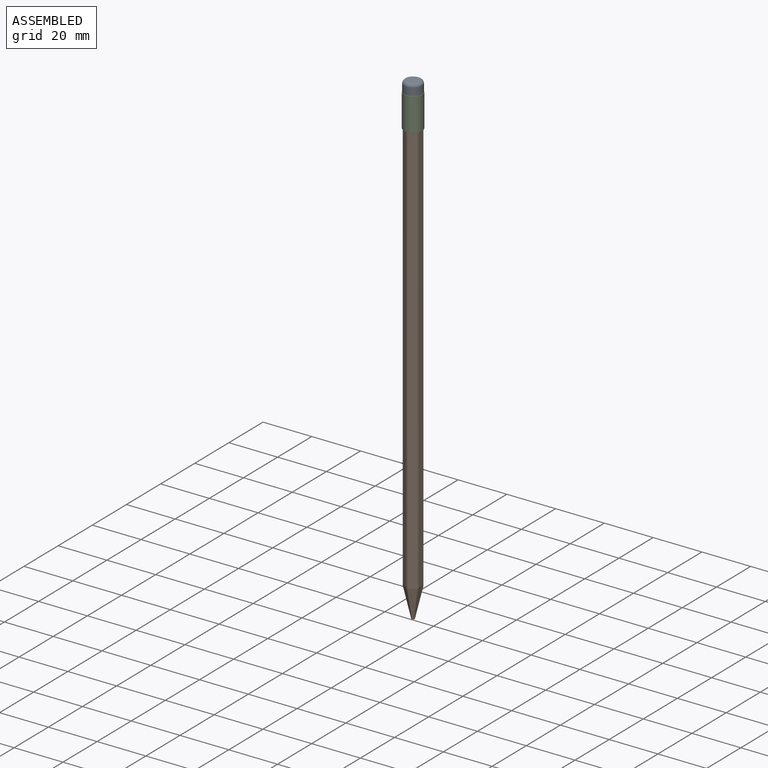
[diagram: assembled view]
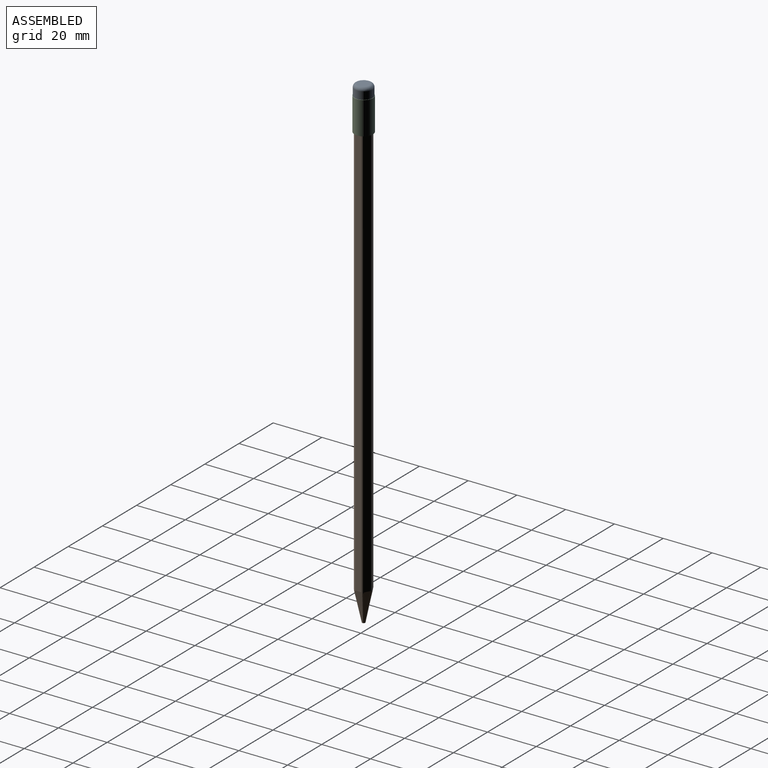
[diagram: assembled view, second angle]
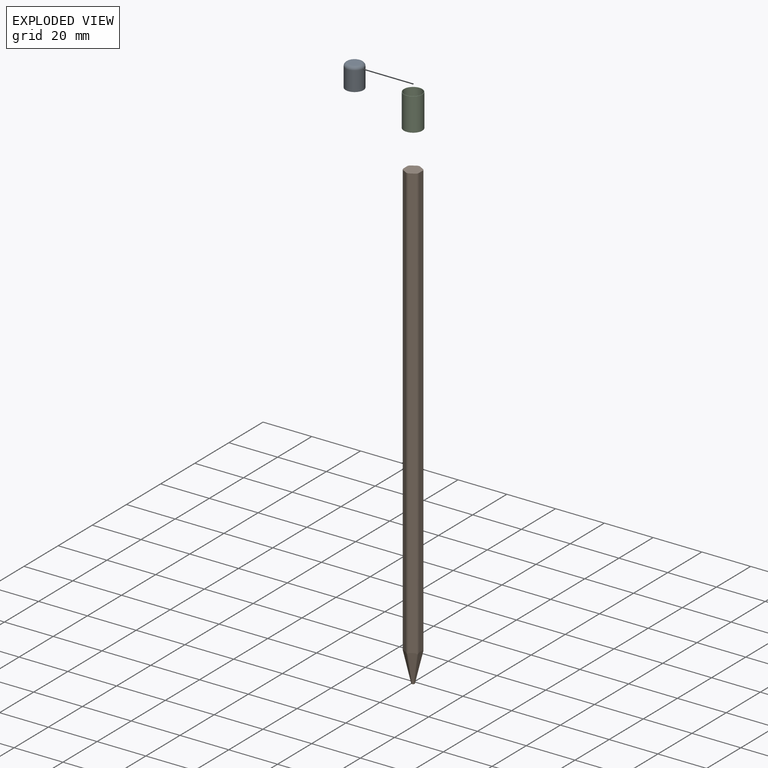
[diagram: exploded view]
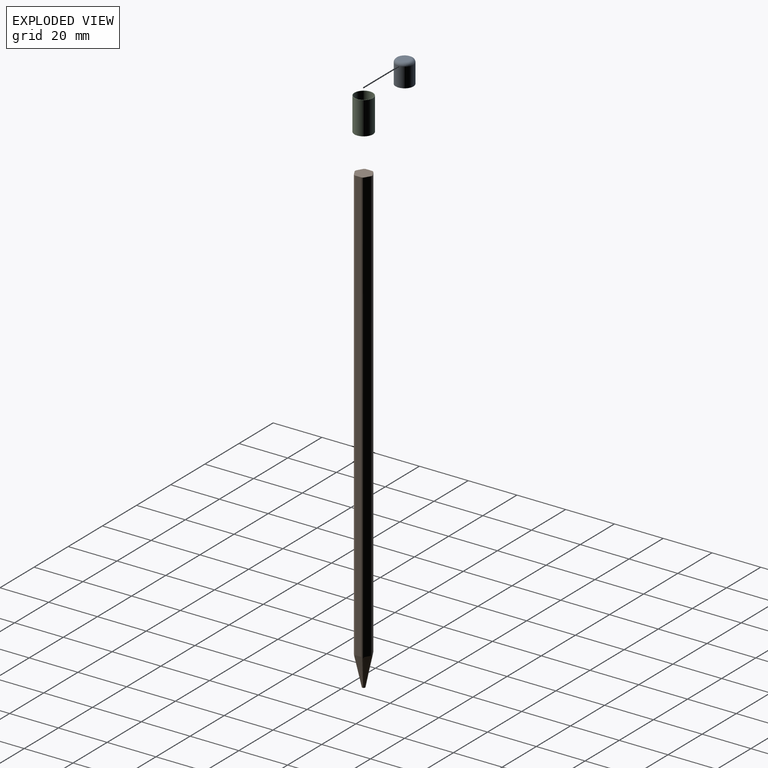
[diagram: exploded view, second angle]
ASSEMBLY  parts=3 mates=2
PART A: 4 faces, bbox 7.9x7.9x9.3 mm
  f0: cylinder r=3.66mm len=8mm, axis (0,0,-1), area 183.9mm2, adj f2,f3
  f1: plane 4.78x4.78mm, normal (0,0,1), area 17.9mm2, adj f3
  f2: plane 7.32x7.32mm, normal (0,0,-1), area 42mm2, adj f0
  f3: torus R=2.39mm, axis (0,0,1), area 40.1mm2, adj f0,f1
PART B: 26 faces, bbox 7x8x190.5 mm
  f0: plane 177.8x1.91mm, normal (0.5,0.87,0), area 391.1mm2, adj f6,f13,f24,f25
  f1: plane 177.8x1.91mm, normal (-0.5,0.87,0), area 391.1mm2, adj f6,f8,f20,f25
  f2: plane 177.8x2.2mm, normal (-1,0,0), area 391.1mm2, adj f6,f9,f20,f21
  f3: plane 177.8x1.91mm, normal (-0.5,-0.87,0), area 391.1mm2, adj f6,f10,f21,f22
  f4: plane 177.8x1.91mm, normal (0.5,-0.87,0), area 391.1mm2, adj f6,f11,f22,f23
  f5: plane 177.8x2.2mm, normal (1,0,0), area 391.1mm2, adj f6,f12,f23,f24
  f6: plane 6.94x6.35mm, normal (0,0,-1), area 34.4mm2, adj f0,f1,f2,f3,f4,f5,f20,f21
  f7: plane 1.27x1.27mm, normal (0,0,1), area 1.3mm2, adj f8,f9,f10,f11,f12,f13
  f8: bspline ~12.7x3.35mm, area 25.1mm2, adj f1,f7,f18,f19,f20,f25
  f9: bspline ~12.7x3.67mm, area 25.1mm2, adj f2,f7,f17,f18,f20,f21
  f10: bspline ~12.7x3.35mm, area 25.1mm2, adj f3,f7,f16,f17,f21,f22
  f11: bspline ~12.7x3.35mm, area 25.1mm2, adj f4,f7,f15,f16,f22,f23
  f12: bspline ~12.7x3.67mm, area 25.1mm2, adj f5,f7,f14,f15,f23,f24
  f13: bspline ~12.7x3.35mm, area 25.1mm2, adj f0,f7,f14,f19,f24,f25
  f14: bspline ~14.16x2.93mm, area 5.1mm2, adj f12,f13,f24
  f15: bspline ~14.16x2.93mm, area 5.1mm2, adj f11,f12,f23
  f16: bspline ~14.16x3.37mm, area 5.1mm2, adj f10,f11,f22
  f17: bspline ~14.16x2.93mm, area 5.1mm2, adj f9,f10,f21
  f18: bspline ~14.16x2.93mm, area 5.1mm2, adj f8,f9,f20
  f19: bspline ~14.16x3.37mm, area 5.1mm2, adj f8,f13,f25
  f20: cylinder r=1.27mm len=178.15mm, axis (0,0,-1), area 236.8mm2, adj f1,f2,f6,f8,f9,f18
  f21: cylinder r=1.27mm len=178.15mm, axis (0,0,-1), area 236.8mm2, adj f2,f3,f6,f9,f10,f17
  f22: cylinder r=1.27mm len=178.15mm, axis (0,0,-1), area 236.8mm2, adj f3,f4,f6,f10,f11,f16
  f23: cylinder r=1.27mm len=178.15mm, axis (0,0,-1), area 236.8mm2, adj f4,f5,f6,f11,f12,f15
  f24: cylinder r=1.27mm len=178.15mm, axis (0,0,-1), area 236.8mm2, adj f0,f5,f6,f12,f13,f14
  f25: cylinder r=1.27mm len=178.15mm, axis (0,0,-1), area 236.8mm2, adj f0,f1,f6,f8,f13,f19
PART C: 8 faces, bbox 8.2x8.2x13.5 mm
  f0: cylinder r=3.66mm len=13.41mm, axis (0,0,-1), area 308.2mm2, adj f4,f6
  f1: cylinder r=3.81mm len=13.41mm, axis (0,0,-1), area 321mm2, adj f5,f7
  f2: plane 7.57x7.57mm, normal (0,0,1), area 2.4mm2, adj f6,f7
  f3: plane 7.57x7.57mm, normal (0,0,-1), area 2.4mm2, adj f4,f5
  f4: torus R=3.68mm, axis (0,0,1), area 0.9mm2, adj f0,f3
  f5: torus R=3.78mm, axis (0,0,1), area 1mm2, adj f1,f3
  f6: torus R=3.68mm, axis (0,0,1), area 0.9mm2, adj f0,f2
  f7: torus R=3.78mm, axis (0,0,1), area 1mm2, adj f1,f2
PLACE A t=(-25.8,-40.86,-29.56)mm
PLACE B rot(axis=(1,0,0),180deg) t=(-25.8,-40.86,-29.56)mm
PLACE C t=(-25.8,-40.86,-38.15)mm
MATE slider C.f0 <-> A.f0  axis (0,0,-1) through (-25.8,-40.86,-24.71)mm
MATE fastened A.f0 <-> B.f6  axis (0,0,-1) through (-25.8,-40.86,-29.56)mm
